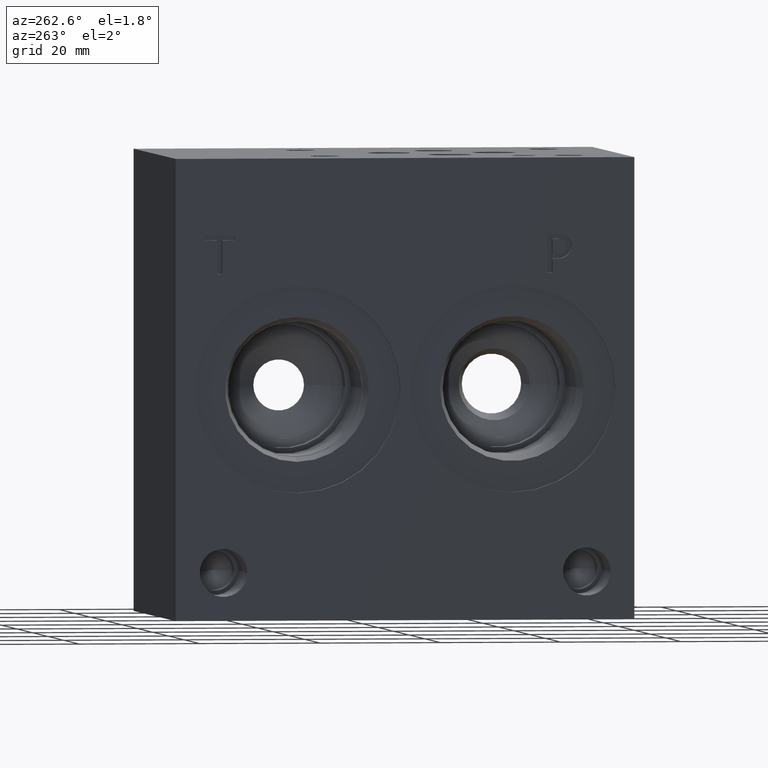
[diagram: clean part render]
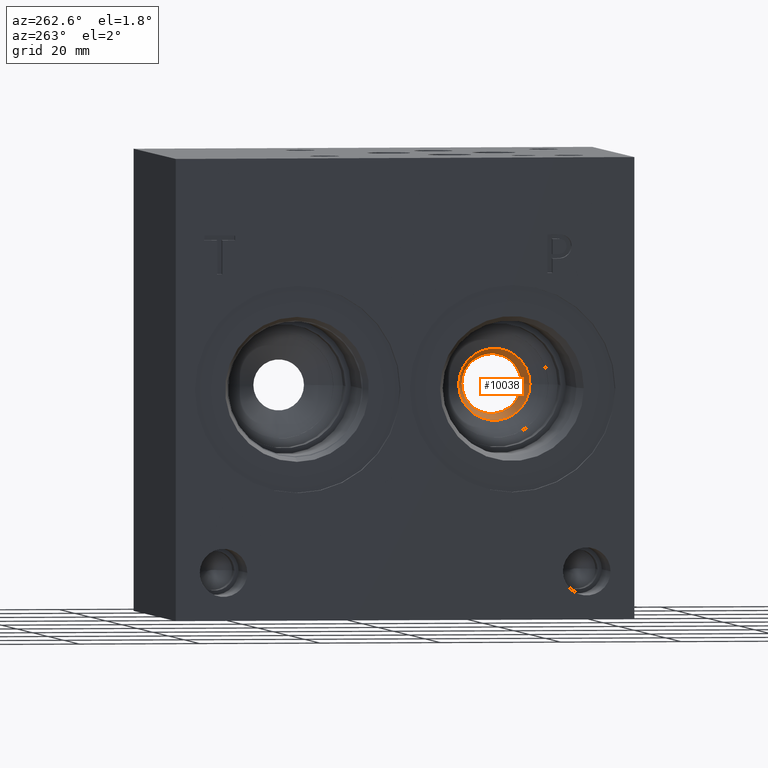
[diagram: same view with one face highlighted and labeled with its STEP entity id]
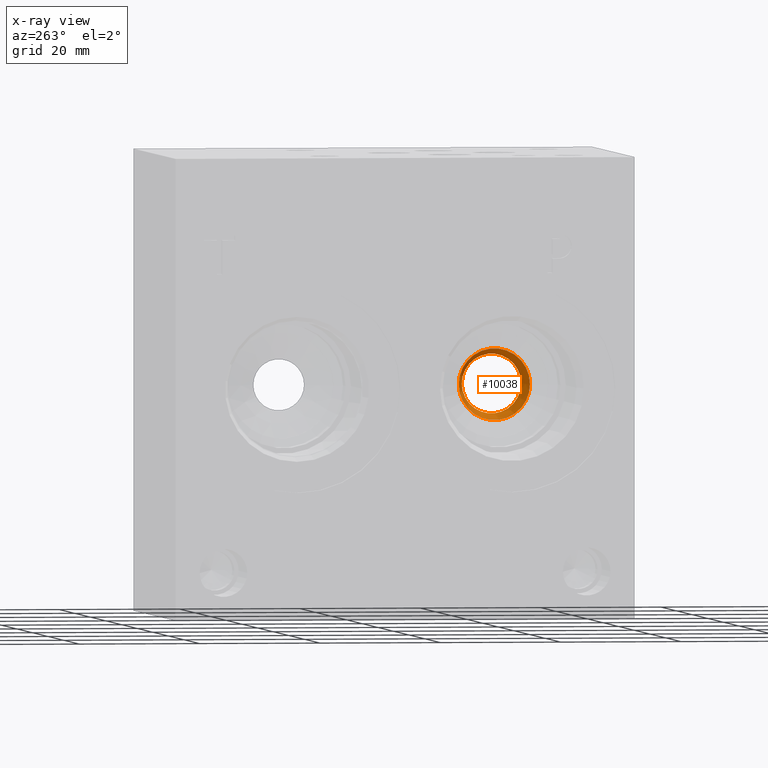
[diagram: x-ray of the same camera — body ghosted, the highlighted face saturated]
A machine part, auxiliary view. The second image highlights one B-rep face of the part: STEP entity #10038.
The next image is the same camera in x-ray: the body ghosted, the highlighted face saturated — about 0% of this face is hidden behind the body in this view.
In plain terms, the highlighted conical surface has half-angle 15 deg.
Its self-contained STEP definition (entity closure, byte-faithful):
#44=CONICAL_SURFACE('',#10597,5.97535,0.261799387799149);
#190=CIRCLE('',#10571,4.93088131294787);
#206=CIRCLE('',#10598,5.9188419460996);
#1232=FACE_OUTER_BOUND('',#1807,.T.);
#1807=EDGE_LOOP('',(#8667,#8668,#8669,#8670));
#2780=LINE('',#17131,#3726);
#3726=VECTOR('',#12616,5.97535);
#4635=VERTEX_POINT('',#17077);
#4651=VERTEX_POINT('',#17129);
#5995=EDGE_CURVE('',#4635,#4635,#190,.T.);
#6019=EDGE_CURVE('',#4651,#4651,#206,.T.);
#6020=EDGE_CURVE('',#4651,#4635,#2780,.T.);
#8667=ORIENTED_EDGE('',*,*,#6019,.F.);
#8668=ORIENTED_EDGE('',*,*,#6020,.T.);
#8669=ORIENTED_EDGE('',*,*,#5995,.T.);
#8670=ORIENTED_EDGE('',*,*,#6020,.F.);
#10038=ADVANCED_FACE('',(#1232),#44,.F.);
#10571=AXIS2_PLACEMENT_3D('',#17079,#12552,#12553);
#10597=AXIS2_PLACEMENT_3D('',#17128,#12612,#12613);
#10598=AXIS2_PLACEMENT_3D('',#17130,#12614,#12615);
#12552=DIRECTION('center_axis',(1.,0.,0.));
#12553=DIRECTION('ref_axis',(0.,1.,0.));
#12612=DIRECTION('center_axis',(-1.,0.,0.));
#12613=DIRECTION('ref_axis',(0.,1.,0.));
#12614=DIRECTION('center_axis',(1.,0.,0.));
#12615=DIRECTION('ref_axis',(0.,1.,0.));
#12616=DIRECTION('',(0.965925826289068,0.258819045102521,-3.16961915143176E-17));
#17077=CARTESIAN_POINT('',(26.9875,15.3129186870521,38.1));
#17079=CARTESIAN_POINT('Origin',(26.9875,20.2438,38.1));
#17128=CARTESIAN_POINT('Origin',(23.0894897930067,20.2438,38.1));
#17129=CARTESIAN_POINT('',(23.3003807211998,14.3249580539004,38.1));
#17130=CARTESIAN_POINT('Origin',(23.3003807211998,20.2438,38.1));
#17131=CARTESIAN_POINT('',(23.0894897930067,14.26845,38.1));